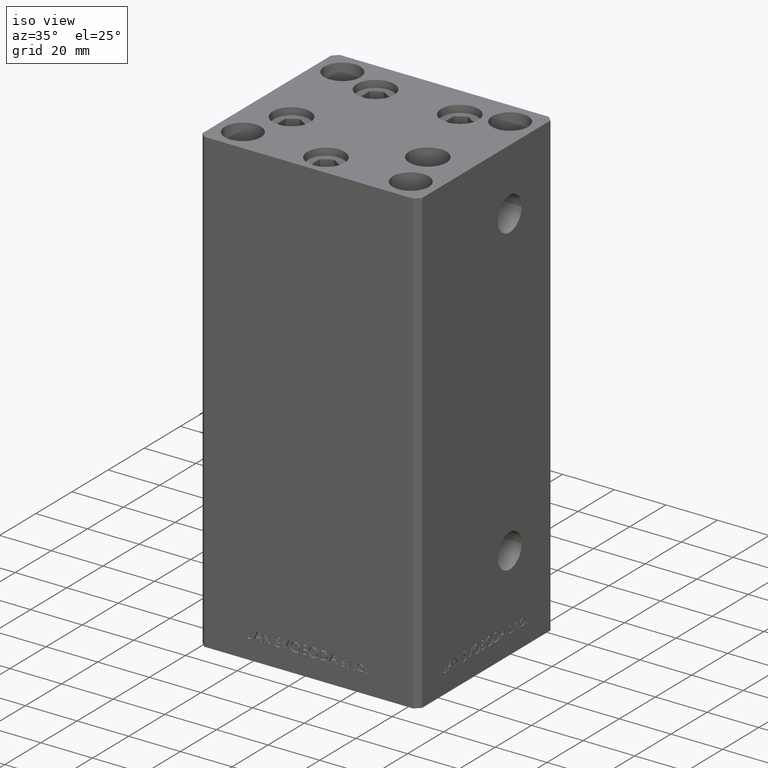
[diagram: clean part render]
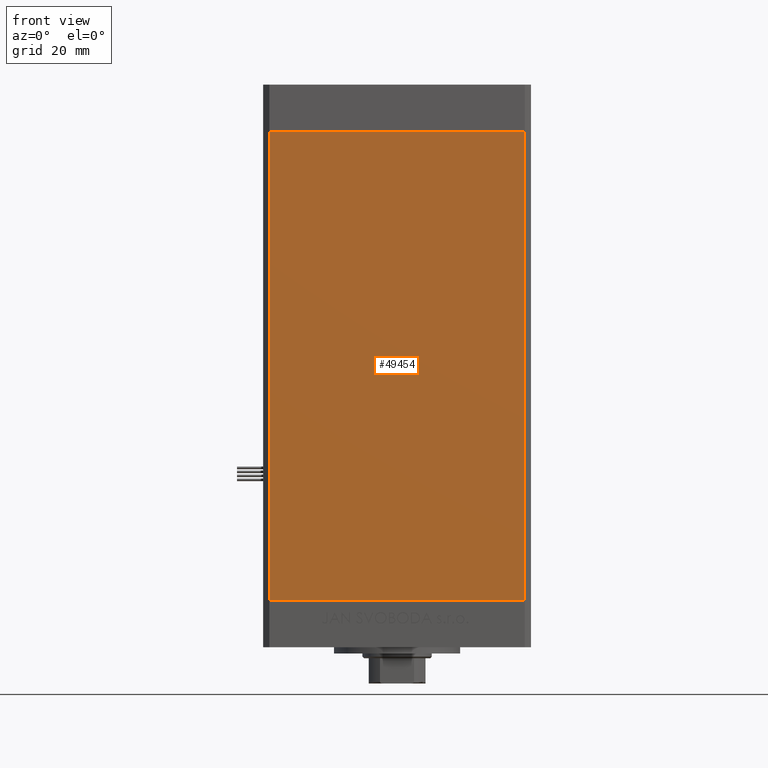
[diagram: tour spotlight — one face highlighted and labeled with its STEP entity id]
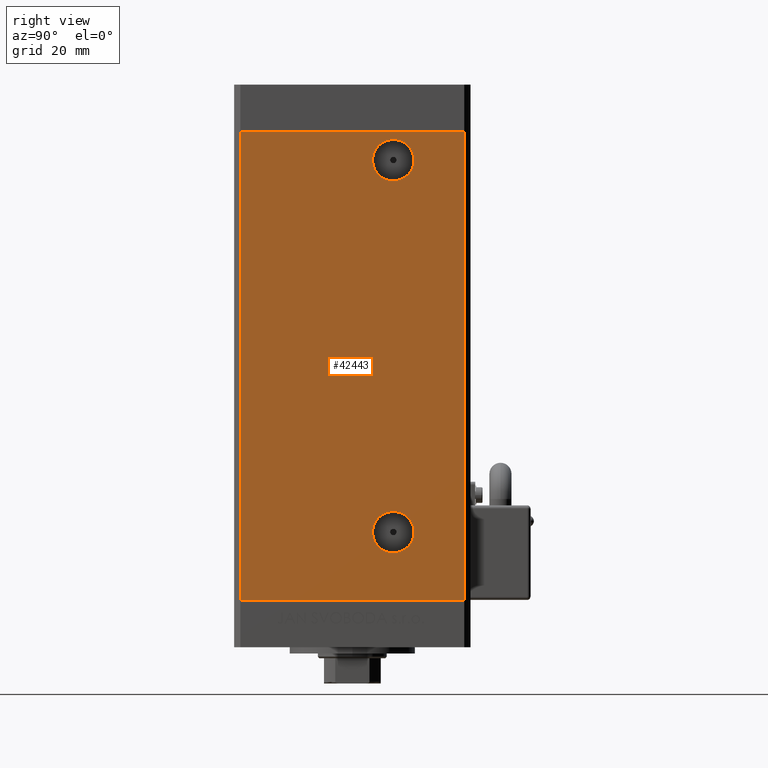
[diagram: tour spotlight — one face highlighted and labeled with its STEP entity id]
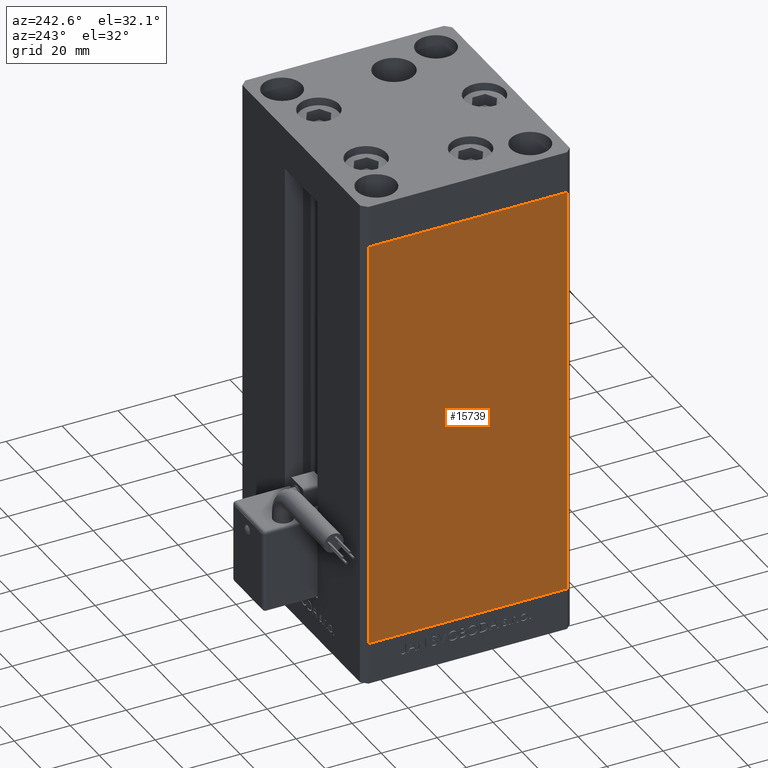
[diagram: tour spotlight — one face highlighted and labeled with its STEP entity id]
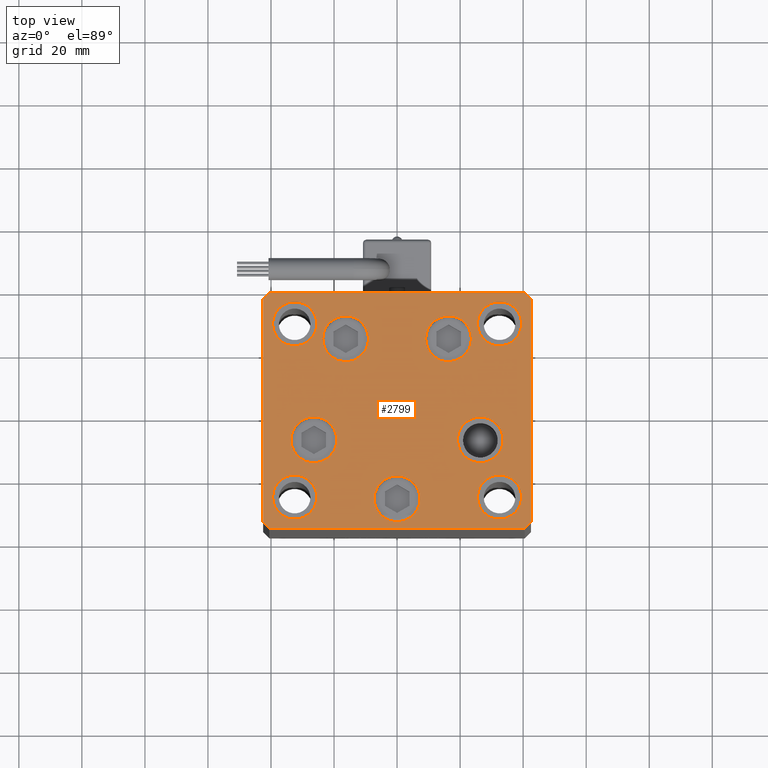
[diagram: tour spotlight — one face highlighted and labeled with its STEP entity id]
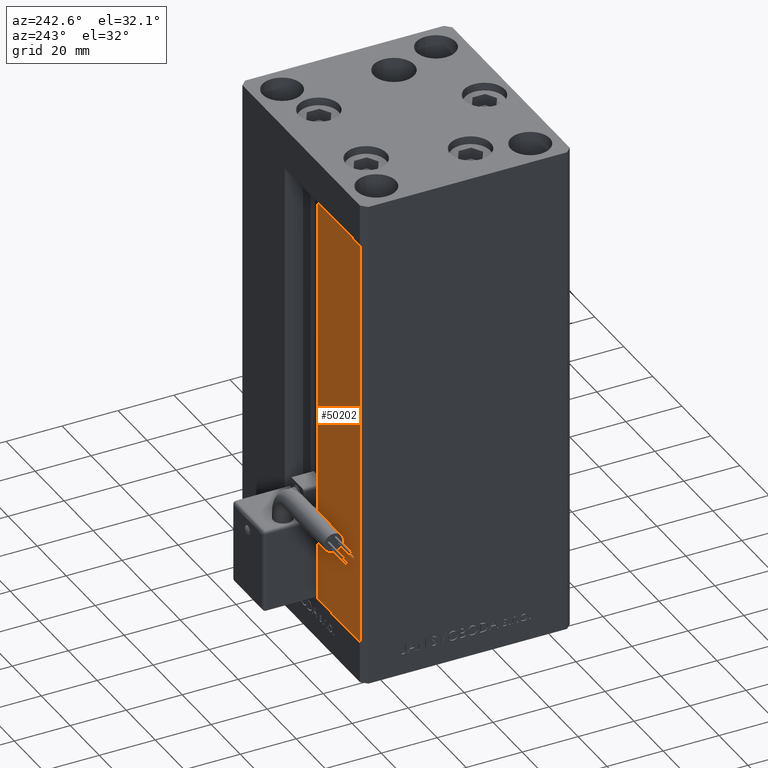
[diagram: tour spotlight — one face highlighted and labeled with its STEP entity id]
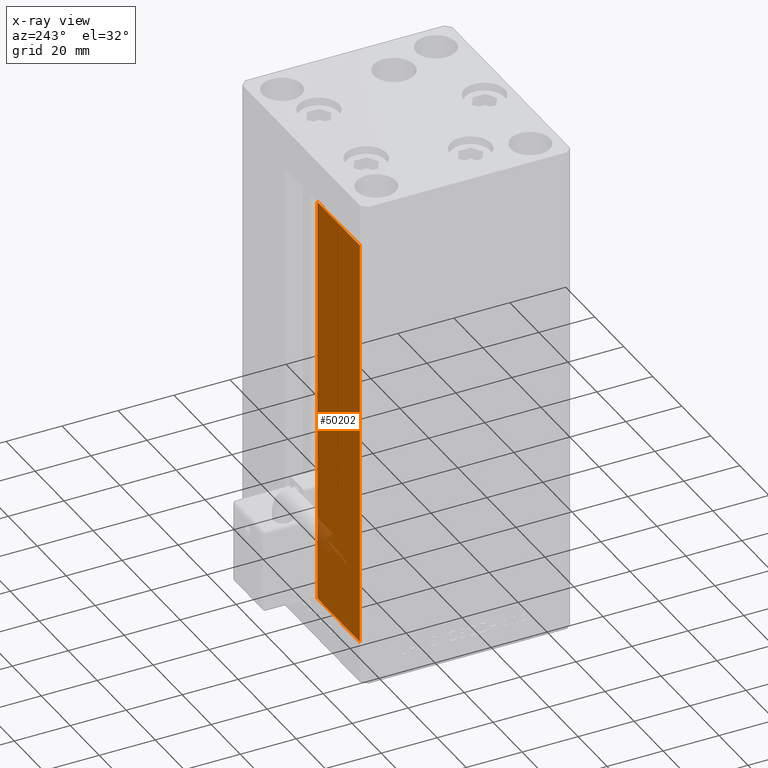
[diagram: x-ray of the same camera — body ghosted, this tour face saturated]
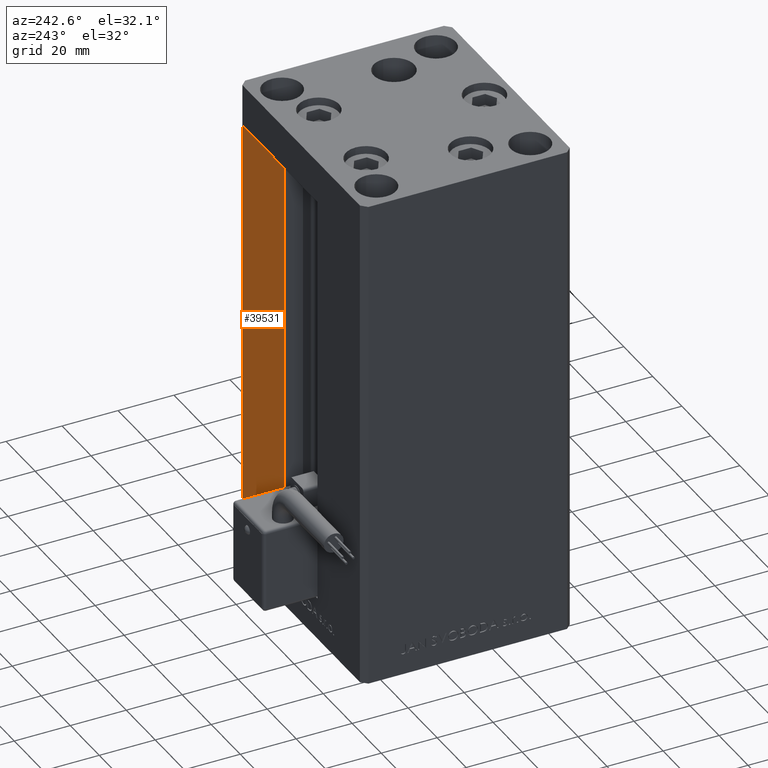
[diagram: tour spotlight — one face highlighted and labeled with its STEP entity id]
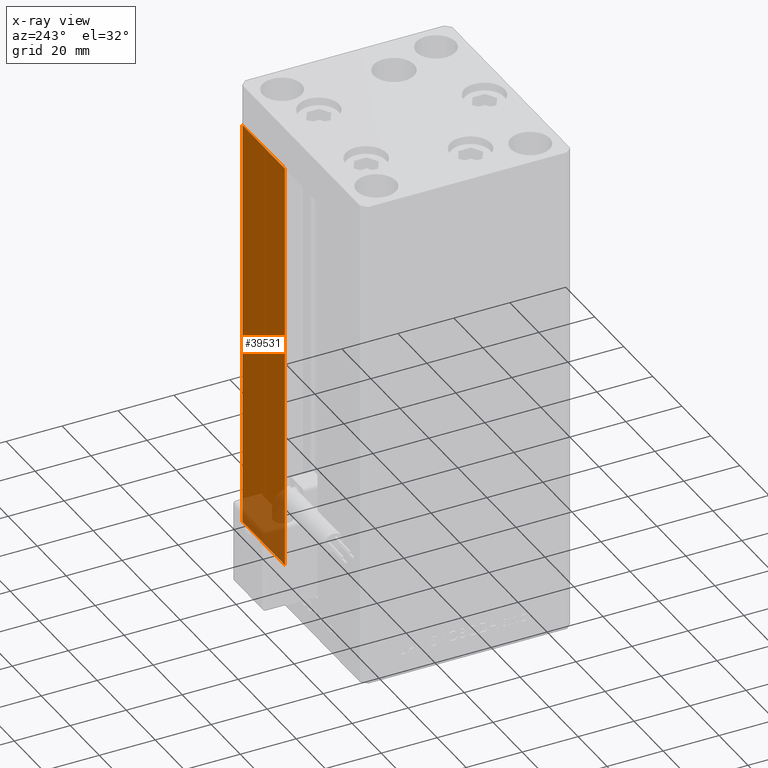
[diagram: x-ray of the same camera — body ghosted, this tour face saturated]
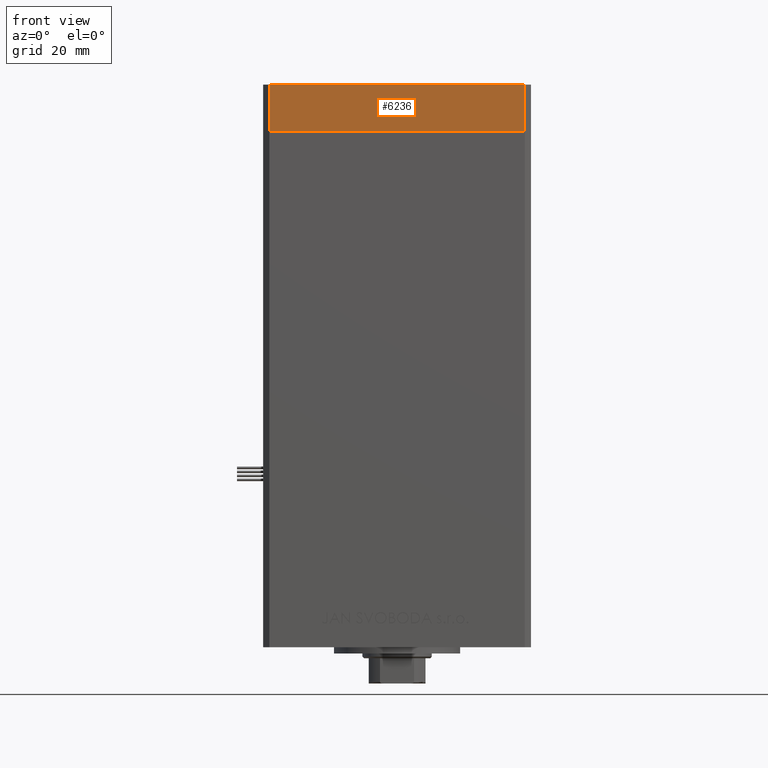
[diagram: tour spotlight — one face highlighted and labeled with its STEP entity id]
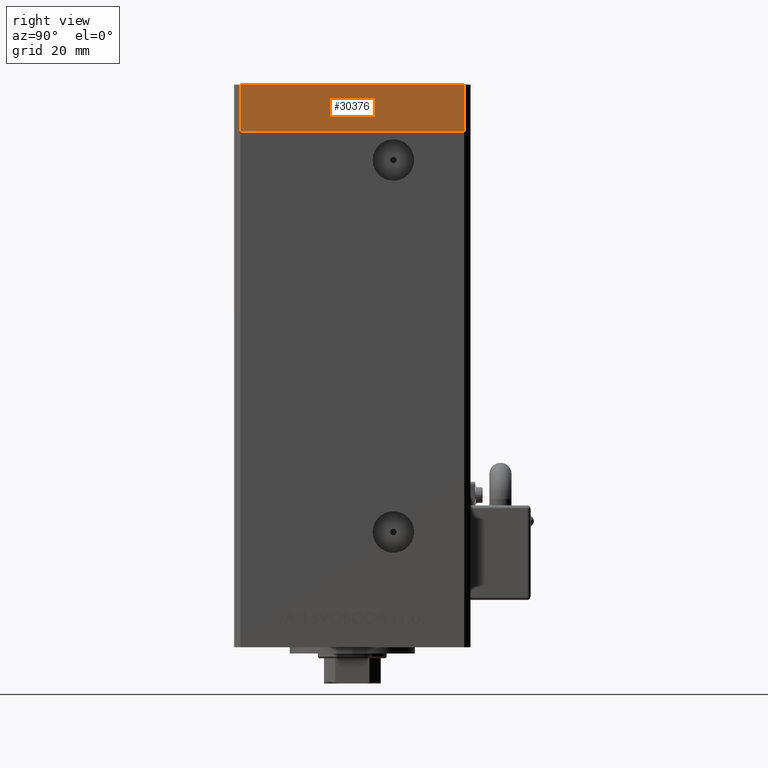
[diagram: tour spotlight — one face highlighted and labeled with its STEP entity id]
A machine part: a face-by-face anatomy tour. The part has 1273 B-rep faces; the first image is the clean iso view, then the 8 largest visible faces are spotlighted one at a time (largest first), each with its STEP entity span.

Face 1 — front view, entity #49454. In plain terms, the highlighted planar face has unit normal (0, 1, 0).
Definition (entity closure, byte-faithful):
#3946 = EDGE_CURVE ( 'NONE', #5306, #8690, #28985, .T. ) ;
#4261 = ORIENTED_EDGE ( 'NONE', *, *, #15121, .T. ) ;
#5306 = VERTEX_POINT ( 'NONE', #15115 ) ;
#5652 = VECTOR ( 'NONE', #24502, 1000.000000000000000 ) ;
#5761 = ORIENTED_EDGE ( 'NONE', *, *, #23369, .F. ) ;
#6499 = VECTOR ( 'NONE', #19738, 1000.000000000000000 ) ;
#8690 = VERTEX_POINT ( 'NONE', #23055 ) ;
#13146 = CARTESIAN_POINT ( 'NONE',  ( -40.49999999999998579, -37.50000000000000711, 148.5000000000000000 ) ) ;
#14660 = PLANE ( 'NONE',  #28077 ) ;
#14953 = LINE ( 'NONE', #19169, #28241 ) ;
#15115 = CARTESIAN_POINT ( 'NONE',  ( -40.49999999999998579, -37.50000000000000711, 0.000000000000000000 ) ) ;
#15121 = EDGE_CURVE ( 'NONE', #25217, #5306, #14953, .T. ) ;
#18355 = DIRECTION ( 'NONE',  ( 0.000000000000000000, -0.000000000000000000, 1.000000000000000000 ) ) ;
#19169 = CARTESIAN_POINT ( 'NONE',  ( -40.49999999999998579, -37.50000000000000711, 148.5000000000000000 ) ) ;
#19738 = DIRECTION ( 'NONE',  ( 1.000000000000000000, 0.000000000000000000, 0.000000000000000000 ) ) ;
#21148 = CARTESIAN_POINT ( 'NONE',  ( 40.49999999999998579, -37.50000000000000711, 148.5000000000000000 ) ) ;
#21863 = EDGE_LOOP ( 'NONE', ( #32644, #33157, #5761, #4261 ) ) ;
#23055 = CARTESIAN_POINT ( 'NONE',  ( 40.49999999999998579, -37.50000000000000711, 0.000000000000000000 ) ) ;
#23090 = CARTESIAN_POINT ( 'NONE',  ( -40.49999999999998579, -37.50000000000000711, 148.5000000000000000 ) ) ;
#23369 = EDGE_CURVE ( 'NONE', #25217, #49733, #39028, .T. ) ;
#24263 = CARTESIAN_POINT ( 'NONE',  ( 40.49999999999998579, -37.50000000000000711, 148.5000000000000000 ) ) ;
#24502 = DIRECTION ( 'NONE',  ( 1.000000000000000000, 0.000000000000000000, 0.000000000000000000 ) ) ;
#25217 = VERTEX_POINT ( 'NONE', #13146 ) ;
#28077 = AXIS2_PLACEMENT_3D ( 'NONE', #23090, #30753, #18355 ) ;
#28241 = VECTOR ( 'NONE', #51389, 1000.000000000000000 ) ;
#28985 = LINE ( 'NONE', #49577, #5652 ) ;
#30753 = DIRECTION ( 'NONE',  ( 0.000000000000000000, 1.000000000000000000, 0.000000000000000000 ) ) ;
#32644 = ORIENTED_EDGE ( 'NONE', *, *, #3946, .T. ) ;
#33157 = ORIENTED_EDGE ( 'NONE', *, *, #37478, .F. ) ;
#33800 = LINE ( 'NONE', #21148, #44866 ) ;
#37478 = EDGE_CURVE ( 'NONE', #49733, #8690, #33800, .T. ) ;
#37502 = DIRECTION ( 'NONE',  ( -0.000000000000000000, -0.000000000000000000, -1.000000000000000000 ) ) ;
#39028 = LINE ( 'NONE', #43771, #6499 ) ;
#43166 = FACE_OUTER_BOUND ( 'NONE', #21863, .T. ) ;
#43771 = CARTESIAN_POINT ( 'NONE',  ( -40.49999999999998579, -37.50000000000000711, 148.5000000000000000 ) ) ;
#44866 = VECTOR ( 'NONE', #37502, 1000.000000000000000 ) ;
#49454 = ADVANCED_FACE ( 'NONE', ( #43166 ), #14660, .F. ) ;
#49577 = CARTESIAN_POINT ( 'NONE',  ( -40.49999999999998579, -37.50000000000000711, 0.000000000000000000 ) ) ;
#49733 = VERTEX_POINT ( 'NONE', #24263 ) ;
#51389 = DIRECTION ( 'NONE',  ( -0.000000000000000000, -0.000000000000000000, -1.000000000000000000 ) ) ;

Face 2 — right view, entity #42443. In plain terms, the highlighted planar face has unit normal (1, -0, 0).
Definition (entity closure, byte-faithful):
#135 = AXIS2_PLACEMENT_3D ( 'NONE', #28023, #44139, #24059 ) ;
#571 = VERTEX_POINT ( 'NONE', #21037 ) ;
#2769 = EDGE_LOOP ( 'NONE', ( #35244, #6471, #34129, #50919 ) ) ;
#3742 = FACE_BOUND ( 'NONE', #49449, .T. ) ;
#4387 = CARTESIAN_POINT ( 'NONE',  ( 42.49999999999999289, 13.00000000000000000, 139.4999999999999716 ) ) ;
#5687 = VERTEX_POINT ( 'NONE', #23431 ) ;
#6471 = ORIENTED_EDGE ( 'NONE', *, *, #51521, .F. ) ;
#8584 = DIRECTION ( 'NONE',  ( 1.000000000000000000, -2.275047181608927644E-16, 0.000000000000000000 ) ) ;
#9321 = VERTEX_POINT ( 'NONE', #13990 ) ;
#9843 = DIRECTION ( 'NONE',  ( -0.000000000000000000, -0.000000000000000000, -1.000000000000000000 ) ) ;
#10186 = VECTOR ( 'NONE', #21258, 1000.000000000000000 ) ;
#10686 = CARTESIAN_POINT ( 'NONE',  ( 42.49999999999999289, 6.419999999999993712, 21.49999999999997868 ) ) ;
#11676 = AXIS2_PLACEMENT_3D ( 'NONE', #23441, #8584, #24921 ) ;
#11935 = PLANE ( 'NONE',  #135 ) ;
#13985 = CARTESIAN_POINT ( 'NONE',  ( 42.50000000000000711, 35.50000000000001421, 148.5000000000000000 ) ) ;
#13990 = CARTESIAN_POINT ( 'NONE',  ( 42.50000000000000711, 35.50000000000001421, 148.5000000000000000 ) ) ;
#14200 = CIRCLE ( 'NONE', #11676, 6.580000000000008065 ) ;
#15408 = CARTESIAN_POINT ( 'NONE',  ( 42.49999999999999289, 6.419999999999983942, 139.4999999999999716 ) ) ;
#15894 = FACE_BOUND ( 'NONE', #31326, .T. ) ;
#16292 = VERTEX_POINT ( 'NONE', #10686 ) ;
#17049 = LINE ( 'NONE', #50036, #10186 ) ;
#18702 = AXIS2_PLACEMENT_3D ( 'NONE', #33449, #49570, #29492 ) ;
#18745 = VECTOR ( 'NONE', #23688, 1000.000000000000000 ) ;
#19841 = FACE_OUTER_BOUND ( 'NONE', #2769, .T. ) ;
#21037 = CARTESIAN_POINT ( 'NONE',  ( 42.49999999999999289, 19.58000000000000540, 21.49999999999997868 ) ) ;
#21090 = VERTEX_POINT ( 'NONE', #23911 ) ;
#21258 = DIRECTION ( 'NONE',  ( -2.931927001650941360E-16, -1.000000000000000000, 0.000000000000000000 ) ) ;
#21974 = AXIS2_PLACEMENT_3D ( 'NONE', #4387, #43732, #32349 ) ;
#22154 = CARTESIAN_POINT ( 'NONE',  ( 42.50000000000000711, 35.50000000000001421, 0.000000000000000000 ) ) ;
#22510 = CIRCLE ( 'NONE', #41877, 6.580000000000008065 ) ;
#23431 = CARTESIAN_POINT ( 'NONE',  ( 42.49999999999999289, 19.58000000000001251, 139.4999999999999716 ) ) ;
#23441 = CARTESIAN_POINT ( 'NONE',  ( 42.49999999999999289, 13.00000000000000000, 21.49999999999997868 ) ) ;
#23554 = VERTEX_POINT ( 'NONE', #30463 ) ;
#23688 = DIRECTION ( 'NONE',  ( -2.931927001650941360E-16, -1.000000000000000000, 0.000000000000000000 ) ) ;
#23911 = CARTESIAN_POINT ( 'NONE',  ( 42.49999999999998579, -35.50000000000000711, 0.000000000000000000 ) ) ;
#23969 = EDGE_CURVE ( 'NONE', #571, #16292, #22510, .T. ) ;
#24059 = DIRECTION ( 'NONE',  ( 2.931927001650941360E-16, 1.000000000000000000, 0.000000000000000000 ) ) ;
#24500 = CIRCLE ( 'NONE', #21974, 6.580000000000014282 ) ;
#24921 = DIRECTION ( 'NONE',  ( 0.000000000000000000, 1.000000000000000000, 0.000000000000000000 ) ) ;
#26698 = EDGE_CURVE ( 'NONE', #16292, #571, #14200, .T. ) ;
#27644 = CARTESIAN_POINT ( 'NONE',  ( 42.50000000000000711, 35.50000000000001421, 148.5000000000000000 ) ) ;
#28023 = CARTESIAN_POINT ( 'NONE',  ( 42.50000000000000711, 35.50000000000001421, 148.5000000000000000 ) ) ;
#29492 = DIRECTION ( 'NONE',  ( 0.000000000000000000, 1.000000000000000000, 0.000000000000000000 ) ) ;
#30106 = VERTEX_POINT ( 'NONE', #15408 ) ;
#30463 = CARTESIAN_POINT ( 'NONE',  ( 42.49999999999998579, -35.50000000000000711, 148.5000000000000000 ) ) ;
#30695 = CARTESIAN_POINT ( 'NONE',  ( 42.49999999999998579, -35.50000000000000711, 148.5000000000000000 ) ) ;
#31326 = EDGE_LOOP ( 'NONE', ( #37306, #44725 ) ) ;
#32349 = DIRECTION ( 'NONE',  ( 0.000000000000000000, 1.000000000000000000, 0.000000000000000000 ) ) ;
#33379 = EDGE_CURVE ( 'NONE', #23554, #21090, #38355, .T. ) ;
#33449 = CARTESIAN_POINT ( 'NONE',  ( 42.49999999999999289, 13.00000000000000000, 139.4999999999999716 ) ) ;
#34129 = ORIENTED_EDGE ( 'NONE', *, *, #38696, .T. ) ;
#35244 = ORIENTED_EDGE ( 'NONE', *, *, #44067, .F. ) ;
#36548 = VECTOR ( 'NONE', #41955, 1000.000000000000000 ) ;
#37065 = EDGE_CURVE ( 'NONE', #5687, #30106, #42294, .T. ) ;
#37306 = ORIENTED_EDGE ( 'NONE', *, *, #23969, .F. ) ;
#38355 = LINE ( 'NONE', #30695, #43005 ) ;
#38696 = EDGE_CURVE ( 'NONE', #9321, #23554, #47977, .T. ) ;
#41877 = AXIS2_PLACEMENT_3D ( 'NONE', #48062, #43844, #51774 ) ;
#41955 = DIRECTION ( 'NONE',  ( -0.000000000000000000, -0.000000000000000000, -1.000000000000000000 ) ) ;
#42294 = CIRCLE ( 'NONE', #18702, 6.580000000000014282 ) ;
#42443 = ADVANCED_FACE ( 'NONE', ( #15894, #3742, #19841 ), #11935, .T. ) ;
#43005 = VECTOR ( 'NONE', #9843, 1000.000000000000000 ) ;
#43732 = DIRECTION ( 'NONE',  ( 1.000000000000000000, -2.275047181608927644E-16, 0.000000000000000000 ) ) ;
#43844 = DIRECTION ( 'NONE',  ( 1.000000000000000000, -2.275047181608927644E-16, 0.000000000000000000 ) ) ;
#43870 = EDGE_CURVE ( 'NONE', #30106, #5687, #24500, .T. ) ;
#44067 = EDGE_CURVE ( 'NONE', #51630, #21090, #17049, .T. ) ;
#44139 = DIRECTION ( 'NONE',  ( 1.000000000000000000, -2.931927001650941360E-16, 0.000000000000000000 ) ) ;
#44725 = ORIENTED_EDGE ( 'NONE', *, *, #26698, .F. ) ;
#45240 = ORIENTED_EDGE ( 'NONE', *, *, #37065, .F. ) ;
#47977 = LINE ( 'NONE', #27644, #18745 ) ;
#48062 = CARTESIAN_POINT ( 'NONE',  ( 42.49999999999999289, 13.00000000000000000, 21.49999999999997868 ) ) ;
#49020 = ORIENTED_EDGE ( 'NONE', *, *, #43870, .F. ) ;
#49367 = LINE ( 'NONE', #13985, #36548 ) ;
#49449 = EDGE_LOOP ( 'NONE', ( #45240, #49020 ) ) ;
#49570 = DIRECTION ( 'NONE',  ( 1.000000000000000000, -2.275047181608927644E-16, 0.000000000000000000 ) ) ;
#50036 = CARTESIAN_POINT ( 'NONE',  ( 42.50000000000000711, 35.50000000000001421, 0.000000000000000000 ) ) ;
#50919 = ORIENTED_EDGE ( 'NONE', *, *, #33379, .T. ) ;
#51521 = EDGE_CURVE ( 'NONE', #9321, #51630, #49367, .T. ) ;
#51630 = VERTEX_POINT ( 'NONE', #22154 ) ;
#51774 = DIRECTION ( 'NONE',  ( 0.000000000000000000, 1.000000000000000000, 0.000000000000000000 ) ) ;

Face 3 — auxiliary view, entity #15739. In plain terms, the highlighted planar face has unit normal (1, 0, 0).
Definition (entity closure, byte-faithful):
#640 = DIRECTION ( 'NONE',  ( -0.000000000000000000, -0.000000000000000000, -1.000000000000000000 ) ) ;
#858 = EDGE_CURVE ( 'NONE', #18353, #14283, #21472, .T. ) ;
#1574 = CARTESIAN_POINT ( 'NONE',  ( -42.50000000000000711, 35.50000000000001421, 0.000000000000000000 ) ) ;
#1724 = VECTOR ( 'NONE', #43366, 1000.000000000000000 ) ;
#2923 = AXIS2_PLACEMENT_3D ( 'NONE', #30864, #46975, #10815 ) ;
#4141 = ORIENTED_EDGE ( 'NONE', *, *, #858, .T. ) ;
#6066 = DIRECTION ( 'NONE',  ( 2.931927001650941360E-16, -1.000000000000000000, 0.000000000000000000 ) ) ;
#7710 = LINE ( 'NONE', #23807, #45535 ) ;
#9872 = CARTESIAN_POINT ( 'NONE',  ( -42.50000000000000711, 35.50000000000001421, 0.000000000000000000 ) ) ;
#9876 = VECTOR ( 'NONE', #640, 1000.000000000000000 ) ;
#10815 = DIRECTION ( 'NONE',  ( -2.931927001650941360E-16, 1.000000000000000000, 0.000000000000000000 ) ) ;
#12093 = EDGE_CURVE ( 'NONE', #18353, #48295, #16175, .T. ) ;
#13160 = ORIENTED_EDGE ( 'NONE', *, *, #42442, .F. ) ;
#14283 = VERTEX_POINT ( 'NONE', #9872 ) ;
#14734 = EDGE_CURVE ( 'NONE', #14283, #42572, #37738, .T. ) ;
#15739 = ADVANCED_FACE ( 'NONE', ( #40094 ), #50952, .F. ) ;
#16175 = LINE ( 'NONE', #31485, #1724 ) ;
#18353 = VERTEX_POINT ( 'NONE', #40663 ) ;
#18880 = ORIENTED_EDGE ( 'NONE', *, *, #14734, .T. ) ;
#21472 = LINE ( 'NONE', #33350, #9876 ) ;
#22291 = VECTOR ( 'NONE', #6066, 1000.000000000000000 ) ;
#23807 = CARTESIAN_POINT ( 'NONE',  ( -42.49999999999998579, -35.50000000000000711, 148.5000000000000000 ) ) ;
#30864 = CARTESIAN_POINT ( 'NONE',  ( -42.50000000000000711, 35.50000000000001421, 148.5000000000000000 ) ) ;
#31485 = CARTESIAN_POINT ( 'NONE',  ( -42.50000000000000711, 35.50000000000001421, 148.5000000000000000 ) ) ;
#33350 = CARTESIAN_POINT ( 'NONE',  ( -42.50000000000000711, 35.50000000000001421, 148.5000000000000000 ) ) ;
#35143 = CARTESIAN_POINT ( 'NONE',  ( -42.49999999999998579, -35.50000000000000711, 148.5000000000000000 ) ) ;
#37738 = LINE ( 'NONE', #1574, #22291 ) ;
#39910 = DIRECTION ( 'NONE',  ( -0.000000000000000000, -0.000000000000000000, -1.000000000000000000 ) ) ;
#40094 = FACE_OUTER_BOUND ( 'NONE', #42801, .T. ) ;
#40663 = CARTESIAN_POINT ( 'NONE',  ( -42.50000000000000711, 35.50000000000001421, 148.5000000000000000 ) ) ;
#41218 = ORIENTED_EDGE ( 'NONE', *, *, #12093, .F. ) ;
#42442 = EDGE_CURVE ( 'NONE', #48295, #42572, #7710, .T. ) ;
#42572 = VERTEX_POINT ( 'NONE', #50707 ) ;
#42801 = EDGE_LOOP ( 'NONE', ( #18880, #13160, #41218, #4141 ) ) ;
#43366 = DIRECTION ( 'NONE',  ( 2.931927001650941360E-16, -1.000000000000000000, 0.000000000000000000 ) ) ;
#45535 = VECTOR ( 'NONE', #39910, 1000.000000000000000 ) ;
#46975 = DIRECTION ( 'NONE',  ( 1.000000000000000000, 2.931927001650941360E-16, -0.000000000000000000 ) ) ;
#48295 = VERTEX_POINT ( 'NONE', #35143 ) ;
#50707 = CARTESIAN_POINT ( 'NONE',  ( -42.49999999999998579, -35.50000000000000711, 0.000000000000000000 ) ) ;
#50952 = PLANE ( 'NONE',  #2923 ) ;

Face 4 — top view, entity #2799. In plain terms, the highlighted planar face has unit normal (0, 0, 1).
Definition (entity closure, byte-faithful):
#222 = CARTESIAN_POINT ( 'NONE',  ( 32.50000000000000000, 27.49999999999999645, 0.000000000000000000 ) ) ;
#774 = DIRECTION ( 'NONE',  ( 0.000000000000000000, 0.000000000000000000, 1.000000000000000000 ) ) ;
#1249 = EDGE_CURVE ( 'NONE', #33994, #25928, #26413, .T. ) ;
#1439 = CARTESIAN_POINT ( 'NONE',  ( -39.50000000000000000, -27.49999999999999645, 0.000000000000000000 ) ) ;
#1889 = CARTESIAN_POINT ( 'NONE',  ( 40.49999999999991473, 37.50000000000000711, 0.000000000000000000 ) ) ;
#1965 = DIRECTION ( 'NONE',  ( 1.000000000000000000, 0.000000000000000000, 0.000000000000000000 ) ) ;
#2242 = DIRECTION ( 'NONE',  ( 0.000000000000000000, 0.000000000000000000, 1.000000000000000000 ) ) ;
#2290 = ORIENTED_EDGE ( 'NONE', *, *, #17596, .T. ) ;
#2587 = ORIENTED_EDGE ( 'NONE', *, *, #26938, .T. ) ;
#2799 = ADVANCED_FACE ( 'NONE', ( #14822, #30918, #10861, #15348, #44369, #43852, #47808, #52042, #15869, #12165 ), #36686, .T. ) ;
#2808 = EDGE_CURVE ( 'NONE', #42016, #28673, #38482, .T. ) ;
#2902 = CIRCLE ( 'NONE', #41681, 7.249999999999999112 ) ;
#3529 = DIRECTION ( 'NONE',  ( 1.000000000000000000, 0.000000000000000000, 0.000000000000000000 ) ) ;
#3699 = CARTESIAN_POINT ( 'NONE',  ( -32.50000000000000000, 27.50000000000000355, 0.000000000000000000 ) ) ;
#3853 = EDGE_CURVE ( 'NONE', #28461, #30441, #11858, .T. ) ;
#3930 = CARTESIAN_POINT ( 'NONE',  ( 42.49999999999992895, 35.50000000000000000, 0.000000000000000000 ) ) ;
#3980 = DIRECTION ( 'NONE',  ( 1.000000000000000000, 0.000000000000000000, 0.000000000000000000 ) ) ;
#4085 = CARTESIAN_POINT ( 'NONE',  ( 25.50000000000000355, -27.49999999999999645, 0.000000000000000000 ) ) ;
#4373 = DIRECTION ( 'NONE',  ( -1.000000000000000000, -3.426614273534436165E-16, 0.000000000000000000 ) ) ;
#4408 = ORIENTED_EDGE ( 'NONE', *, *, #28252, .T. ) ;
#4923 = CARTESIAN_POINT ( 'NONE',  ( -40.49999999999999289, -37.50000000000002132, 0.000000000000000000 ) ) ;
#5145 = CARTESIAN_POINT ( 'NONE',  ( -7.249999999999997335, -28.00000000000000000, 0.000000000000000000 ) ) ;
#5229 = DIRECTION ( 'NONE',  ( -1.172770800660376741E-15, 1.000000000000000000, 0.000000000000000000 ) ) ;
#5272 = DIRECTION ( 'NONE',  ( 0.000000000000000000, -0.000000000000000000, -1.000000000000000000 ) ) ;
#5567 = ORIENTED_EDGE ( 'NONE', *, *, #49413, .F. ) ;
#6095 = VERTEX_POINT ( 'NONE', #17730 ) ;
#6099 = CARTESIAN_POINT ( 'NONE',  ( 42.50000000000000711, -35.50000000000000000, 0.000000000000000000 ) ) ;
#6128 = EDGE_CURVE ( 'NONE', #50057, #38817, #12736, .T. ) ;
#6306 = DIRECTION ( 'NONE',  ( 0.000000000000000000, -0.000000000000000000, -1.000000000000000000 ) ) ;
#6328 = AXIS2_PLACEMENT_3D ( 'NONE', #47162, #7563, #23395 ) ;
#6732 = DIRECTION ( 'NONE',  ( 1.000000000000000000, 0.000000000000000000, 0.000000000000000000 ) ) ;
#7279 = AXIS2_PLACEMENT_3D ( 'NONE', #7686, #36434, #3980 ) ;
#7327 = VERTEX_POINT ( 'NONE', #42210 ) ;
#7400 = ORIENTED_EDGE ( 'NONE', *, *, #40366, .F. ) ;
#7508 = AXIS2_PLACEMENT_3D ( 'NONE', #39694, #23583, #3529 ) ;
#7563 = DIRECTION ( 'NONE',  ( 0.000000000000000000, -0.000000000000000000, -1.000000000000000000 ) ) ;
#7686 = CARTESIAN_POINT ( 'NONE',  ( 0.000000000000000000, 0.000000000000000000, 0.000000000000000000 ) ) ;
#7816 = AXIS2_PLACEMENT_3D ( 'NONE', #14405, #42895, #34714 ) ;
#7924 = EDGE_CURVE ( 'NONE', #28673, #42016, #14265, .T. ) ;
#8386 = ORIENTED_EDGE ( 'NONE', *, *, #7924, .F. ) ;
#8461 = DIRECTION ( 'NONE',  ( 0.000000000000000000, 0.000000000000000000, 1.000000000000000000 ) ) ;
#8847 = CARTESIAN_POINT ( 'NONE',  ( 40.49999999999991473, 37.50000000000000711, 0.000000000000000000 ) ) ;
#9178 = LINE ( 'NONE', #41640, #43891 ) ;
#9385 = ORIENTED_EDGE ( 'NONE', *, *, #46571, .F. ) ;
#9508 = AXIS2_PLACEMENT_3D ( 'NONE', #43425, #2242, #6732 ) ;
#9983 = ORIENTED_EDGE ( 'NONE', *, *, #38865, .T. ) ;
#10317 = ORIENTED_EDGE ( 'NONE', *, *, #51882, .T. ) ;
#10621 = CIRCLE ( 'NONE', #43477, 7.249999999999999112 ) ;
#10861 = FACE_BOUND ( 'NONE', #44228, .T. ) ;
#11858 = LINE ( 'NONE', #3930, #49488 ) ;
#12165 = FACE_OUTER_BOUND ( 'NONE', #42050, .T. ) ;
#12530 = ORIENTED_EDGE ( 'NONE', *, *, #39492, .F. ) ;
#12539 = AXIS2_PLACEMENT_3D ( 'NONE', #41809, #21483, #30195 ) ;
#12736 = LINE ( 'NONE', #17469, #34370 ) ;
#12843 = CARTESIAN_POINT ( 'NONE',  ( -23.57291334290543006, 22.74999999999999645, 0.000000000000000000 ) ) ;
#13069 = DIRECTION ( 'NONE',  ( 1.000000000000000000, 0.000000000000000000, 0.000000000000000000 ) ) ;
#14238 = DIRECTION ( 'NONE',  ( 1.000000000000000000, 0.000000000000000000, 0.000000000000000000 ) ) ;
#14265 = CIRCLE ( 'NONE', #7508, 6.999999999999999112 ) ;
#14405 = CARTESIAN_POINT ( 'NONE',  ( 32.50000000000000000, 27.49999999999999645, 0.000000000000000000 ) ) ;
#14822 = FACE_BOUND ( 'NONE', #26796, .T. ) ;
#14931 = ORIENTED_EDGE ( 'NONE', *, *, #3853, .T. ) ;
#14991 = DIRECTION ( 'NONE',  ( 0.7071067811865474617, 0.7071067811865474617, 0.000000000000000000 ) ) ;
#14995 = ORIENTED_EDGE ( 'NONE', *, *, #25897, .T. ) ;
#15023 = CIRCLE ( 'NONE', #42830, 7.249999999999999112 ) ;
#15267 = CARTESIAN_POINT ( 'NONE',  ( 16.32291334290542295, 22.75000000000000000, 0.000000000000000000 ) ) ;
#15348 = FACE_BOUND ( 'NONE', #20568, .T. ) ;
#15435 = VERTEX_POINT ( 'NONE', #37225 ) ;
#15835 = ORIENTED_EDGE ( 'NONE', *, *, #2808, .F. ) ;
#15869 = FACE_BOUND ( 'NONE', #38236, .T. ) ;
#15969 = EDGE_CURVE ( 'NONE', #27512, #44983, #29074, .T. ) ;
#16555 = EDGE_LOOP ( 'NONE', ( #12530, #5567 ) ) ;
#16762 = DIRECTION ( 'NONE',  ( 0.000000000000000000, 0.000000000000000000, 1.000000000000000000 ) ) ;
#17358 = AXIS2_PLACEMENT_3D ( 'NONE', #22030, #38137, #1965 ) ;
#17469 = CARTESIAN_POINT ( 'NONE',  ( -42.50000000000000000, -35.50000000000000711, 0.000000000000000000 ) ) ;
#17511 = CIRCLE ( 'NONE', #29298, 6.999999999999999112 ) ;
#17589 = DIRECTION ( 'NONE',  ( 1.000000000000000000, 0.000000000000000000, 0.000000000000000000 ) ) ;
#17596 = EDGE_CURVE ( 'NONE', #46155, #32190, #10621, .T. ) ;
#17659 = VECTOR ( 'NONE', #4373, 1000.000000000000000 ) ;
#17730 = CARTESIAN_POINT ( 'NONE',  ( -25.50000000000000355, -27.49999999999999645, 0.000000000000000000 ) ) ;
#19728 = CARTESIAN_POINT ( 'NONE',  ( -42.50000000000000000, -35.50000000000000711, 0.000000000000000000 ) ) ;
#19761 = DIRECTION ( 'NONE',  ( 0.000000000000000000, 0.000000000000000000, 1.000000000000000000 ) ) ;
#19903 = EDGE_LOOP ( 'NONE', ( #2290, #9983 ) ) ;
#20319 = DIRECTION ( 'NONE',  ( 1.000000000000000000, 0.000000000000000000, 0.000000000000000000 ) ) ;
#20438 = VERTEX_POINT ( 'NONE', #33626 ) ;
#20568 = EDGE_LOOP ( 'NONE', ( #37448, #40639 ) ) ;
#20714 = CARTESIAN_POINT ( 'NONE',  ( -32.50000000000000000, -27.49999999999999645, 0.000000000000000000 ) ) ;
#20902 = DIRECTION ( 'NONE',  ( 0.7071067811865463515, -0.7071067811865487940, 0.000000000000000000 ) ) ;
#20965 = CIRCLE ( 'NONE', #12539, 7.249999999999999112 ) ;
#21105 = CARTESIAN_POINT ( 'NONE',  ( 3.429011037612589276E-15, -28.00000000000000000, 0.000000000000000000 ) ) ;
#21246 = LINE ( 'NONE', #8847, #17659 ) ;
#21328 = EDGE_CURVE ( 'NONE', #20438, #24663, #32537, .T. ) ;
#21483 = DIRECTION ( 'NONE',  ( 0.000000000000000000, -0.000000000000000000, -1.000000000000000000 ) ) ;
#21945 = AXIS2_PLACEMENT_3D ( 'NONE', #222, #19761, #28450 ) ;
#22030 = CARTESIAN_POINT ( 'NONE',  ( 3.429011037612589276E-15, -28.00000000000000000, 0.000000000000000000 ) ) ;
#23395 = DIRECTION ( 'NONE',  ( 1.000000000000000000, 0.000000000000000000, 0.000000000000000000 ) ) ;
#23534 = CARTESIAN_POINT ( 'NONE',  ( 9.072913342905424727, 22.75000000000000000, 0.000000000000000000 ) ) ;
#23583 = DIRECTION ( 'NONE',  ( 0.000000000000000000, 0.000000000000000000, 1.000000000000000000 ) ) ;
#24036 = DIRECTION ( 'NONE',  ( 1.000000000000000000, 0.000000000000000000, 0.000000000000000000 ) ) ;
#24123 = EDGE_CURVE ( 'NONE', #24663, #20438, #52083, .T. ) ;
#24663 = VERTEX_POINT ( 'NONE', #5145 ) ;
#24779 = EDGE_CURVE ( 'NONE', #6095, #39865, #17511, .T. ) ;
#25328 = EDGE_CURVE ( 'NONE', #42449, #44282, #15023, .T. ) ;
#25443 = CARTESIAN_POINT ( 'NONE',  ( -42.50000000000000711, 35.49999999999997158, 0.000000000000000000 ) ) ;
#25776 = DIRECTION ( 'NONE',  ( 0.000000000000000000, -0.000000000000000000, -1.000000000000000000 ) ) ;
#25897 = EDGE_CURVE ( 'NONE', #38817, #15435, #38114, .T. ) ;
#25928 = VERTEX_POINT ( 'NONE', #25443 ) ;
#25964 = EDGE_LOOP ( 'NONE', ( #46791, #46078 ) ) ;
#26413 = LINE ( 'NONE', #30119, #35083 ) ;
#26495 = CARTESIAN_POINT ( 'NONE',  ( -16.32291334290543006, 22.74999999999999645, 0.000000000000000000 ) ) ;
#26796 = EDGE_LOOP ( 'NONE', ( #10317, #30059 ) ) ;
#26938 = EDGE_CURVE ( 'NONE', #44282, #42449, #20965, .T. ) ;
#27102 = DIRECTION ( 'NONE',  ( 9.773090005503140331E-17, -1.000000000000000000, 0.000000000000000000 ) ) ;
#27512 = VERTEX_POINT ( 'NONE', #44108 ) ;
#27642 = CARTESIAN_POINT ( 'NONE',  ( 40.50000000000000000, -37.50000000000000711, 0.000000000000000000 ) ) ;
#28230 = DIRECTION ( 'NONE',  ( 1.000000000000000000, 0.000000000000000000, 0.000000000000000000 ) ) ;
#28252 = EDGE_CURVE ( 'NONE', #30441, #33994, #21246, .T. ) ;
#28450 = DIRECTION ( 'NONE',  ( 1.000000000000000000, 0.000000000000000000, 0.000000000000000000 ) ) ;
#28461 = VERTEX_POINT ( 'NONE', #34528 ) ;
#28673 = VERTEX_POINT ( 'NONE', #4085 ) ;
#28939 = EDGE_LOOP ( 'NONE', ( #35575, #9385 ) ) ;
#28976 = EDGE_CURVE ( 'NONE', #29448, #47123, #32827, .T. ) ;
#29005 = DIRECTION ( 'NONE',  ( 0.000000000000000000, -0.000000000000000000, -1.000000000000000000 ) ) ;
#29074 = CIRCLE ( 'NONE', #6328, 7.249999999999999112 ) ;
#29298 = AXIS2_PLACEMENT_3D ( 'NONE', #20714, #16762, #13069 ) ;
#29448 = VERTEX_POINT ( 'NONE', #44351 ) ;
#29636 = AXIS2_PLACEMENT_3D ( 'NONE', #41713, #41978, #38019 ) ;
#29730 = CIRCLE ( 'NONE', #46592, 7.249999999999999112 ) ;
#30059 = ORIENTED_EDGE ( 'NONE', *, *, #28976, .T. ) ;
#30119 = CARTESIAN_POINT ( 'NONE',  ( -40.50000000000000711, 37.49999999999997868, 0.000000000000000000 ) ) ;
#30188 = DIRECTION ( 'NONE',  ( 1.000000000000000000, 1.713307136767217096E-16, 0.000000000000000000 ) ) ;
#30195 = DIRECTION ( 'NONE',  ( 1.000000000000000000, 0.000000000000000000, 0.000000000000000000 ) ) ;
#30243 = ORIENTED_EDGE ( 'NONE', *, *, #43708, .T. ) ;
#30441 = VERTEX_POINT ( 'NONE', #1889 ) ;
#30582 = CIRCLE ( 'NONE', #7816, 6.999999999999999112 ) ;
#30918 = FACE_BOUND ( 'NONE', #19903, .T. ) ;
#31127 = DIRECTION ( 'NONE',  ( -0.7071067811865474617, 0.7071067811865474617, 0.000000000000000000 ) ) ;
#31864 = CARTESIAN_POINT ( 'NONE',  ( 39.50000000000000000, 27.49999999999999645, 0.000000000000000000 ) ) ;
#32052 = CARTESIAN_POINT ( 'NONE',  ( -40.50000000000000711, 37.49999999999997868, 0.000000000000000000 ) ) ;
#32190 = VERTEX_POINT ( 'NONE', #51543 ) ;
#32537 = CIRCLE ( 'NONE', #17358, 7.250000000000000000 ) ;
#32827 = CIRCLE ( 'NONE', #44677, 7.249999999999999112 ) ;
#33443 = DIRECTION ( 'NONE',  ( 1.000000000000000000, 0.000000000000000000, 0.000000000000000000 ) ) ;
#33626 = CARTESIAN_POINT ( 'NONE',  ( 7.250000000000003553, -28.00000000000000000, 0.000000000000000000 ) ) ;
#33938 = CARTESIAN_POINT ( 'NONE',  ( 16.32291334290542295, 22.75000000000000000, 0.000000000000000000 ) ) ;
#33986 = VERTEX_POINT ( 'NONE', #40508 ) ;
#33994 = VERTEX_POINT ( 'NONE', #32052 ) ;
#34125 = EDGE_LOOP ( 'NONE', ( #15835, #8386 ) ) ;
#34370 = VECTOR ( 'NONE', #20902, 1000.000000000000000 ) ;
#34420 = DIRECTION ( 'NONE',  ( 1.000000000000000000, 0.000000000000000000, 0.000000000000000000 ) ) ;
#34528 = CARTESIAN_POINT ( 'NONE',  ( 42.49999999999992895, 35.50000000000000000, 0.000000000000000000 ) ) ;
#34714 = DIRECTION ( 'NONE',  ( 1.000000000000000000, 0.000000000000000000, 0.000000000000000000 ) ) ;
#35083 = VECTOR ( 'NONE', #39084, 1000.000000000000000 ) ;
#35575 = ORIENTED_EDGE ( 'NONE', *, *, #24779, .F. ) ;
#36434 = DIRECTION ( 'NONE',  ( -0.000000000000000000, 0.000000000000000000, 1.000000000000000000 ) ) ;
#36686 = PLANE ( 'NONE',  #7279 ) ;
#36970 = ORIENTED_EDGE ( 'NONE', *, *, #1249, .T. ) ;
#37119 = DIRECTION ( 'NONE',  ( 0.000000000000000000, -0.000000000000000000, -1.000000000000000000 ) ) ;
#37184 = CARTESIAN_POINT ( 'NONE',  ( -26.39865316429776954, -9.333333333333337478, 0.000000000000000000 ) ) ;
#37225 = CARTESIAN_POINT ( 'NONE',  ( 40.50000000000000000, -37.50000000000000711, 0.000000000000000000 ) ) ;
#37406 = CARTESIAN_POINT ( 'NONE',  ( 26.39865316429776954, -9.333333333333330373, 0.000000000000000000 ) ) ;
#37448 = ORIENTED_EDGE ( 'NONE', *, *, #24123, .T. ) ;
#37830 = CARTESIAN_POINT ( 'NONE',  ( 25.50000000000000355, 27.49999999999999645, 0.000000000000000000 ) ) ;
#38018 = VERTEX_POINT ( 'NONE', #37830 ) ;
#38019 = DIRECTION ( 'NONE',  ( 1.000000000000000000, 0.000000000000000000, 0.000000000000000000 ) ) ;
#38076 = VECTOR ( 'NONE', #27102, 1000.000000000000000 ) ;
#38114 = LINE ( 'NONE', #46031, #45360 ) ;
#38137 = DIRECTION ( 'NONE',  ( 0.000000000000000000, -0.000000000000000000, -1.000000000000000000 ) ) ;
#38236 = EDGE_LOOP ( 'NONE', ( #47246, #7400 ) ) ;
#38239 = VERTEX_POINT ( 'NONE', #6099 ) ;
#38482 = CIRCLE ( 'NONE', #43541, 6.999999999999999112 ) ;
#38574 = AXIS2_PLACEMENT_3D ( 'NONE', #21105, #5272, #45915 ) ;
#38817 = VERTEX_POINT ( 'NONE', #4923 ) ;
#38865 = EDGE_CURVE ( 'NONE', #32190, #46155, #29730, .T. ) ;
#38913 = CIRCLE ( 'NONE', #29636, 6.999999999999999112 ) ;
#39017 = LINE ( 'NONE', #27642, #46670 ) ;
#39019 = CIRCLE ( 'NONE', #50825, 6.999999999999999112 ) ;
#39084 = DIRECTION ( 'NONE',  ( -0.7071067811865463515, -0.7071067811865487940, 0.000000000000000000 ) ) ;
#39492 = EDGE_CURVE ( 'NONE', #7327, #33986, #39019, .T. ) ;
#39694 = CARTESIAN_POINT ( 'NONE',  ( 32.50000000000000000, -27.49999999999999645, 0.000000000000000000 ) ) ;
#39865 = VERTEX_POINT ( 'NONE', #1439 ) ;
#40166 = CARTESIAN_POINT ( 'NONE',  ( 19.14865316429777309, -9.333333333333330373, 0.000000000000000000 ) ) ;
#40366 = EDGE_CURVE ( 'NONE', #38018, #50070, #44718, .T. ) ;
#40405 = CARTESIAN_POINT ( 'NONE',  ( 32.50000000000000000, -27.49999999999999645, 0.000000000000000000 ) ) ;
#40500 = CARTESIAN_POINT ( 'NONE',  ( -19.14865316429777309, -9.333333333333335702, 0.000000000000000000 ) ) ;
#40508 = CARTESIAN_POINT ( 'NONE',  ( -39.50000000000000000, 27.50000000000000355, 0.000000000000000000 ) ) ;
#40639 = ORIENTED_EDGE ( 'NONE', *, *, #21328, .T. ) ;
#40713 = AXIS2_PLACEMENT_3D ( 'NONE', #37184, #29005, #20319 ) ;
#41535 = CIRCLE ( 'NONE', #40713, 7.249999999999999112 ) ;
#41640 = CARTESIAN_POINT ( 'NONE',  ( 42.50000000000000711, -35.50000000000000000, 0.000000000000000000 ) ) ;
#41681 = AXIS2_PLACEMENT_3D ( 'NONE', #26495, #50021, #34420 ) ;
#41713 = CARTESIAN_POINT ( 'NONE',  ( -32.50000000000000000, -27.49999999999999645, 0.000000000000000000 ) ) ;
#41794 = ORIENTED_EDGE ( 'NONE', *, *, #6128, .T. ) ;
#41809 = CARTESIAN_POINT ( 'NONE',  ( 26.39865316429776954, -9.333333333333330373, 0.000000000000000000 ) ) ;
#41978 = DIRECTION ( 'NONE',  ( 0.000000000000000000, 0.000000000000000000, 1.000000000000000000 ) ) ;
#42016 = VERTEX_POINT ( 'NONE', #42880 ) ;
#42050 = EDGE_LOOP ( 'NONE', ( #41794, #14995, #42246, #30243, #14931, #4408, #36970, #44223 ) ) ;
#42210 = CARTESIAN_POINT ( 'NONE',  ( -25.50000000000000355, 27.50000000000000355, 0.000000000000000000 ) ) ;
#42246 = ORIENTED_EDGE ( 'NONE', *, *, #50052, .T. ) ;
#42429 = CARTESIAN_POINT ( 'NONE',  ( -42.50000000000000711, 35.49999999999997158, 0.000000000000000000 ) ) ;
#42449 = VERTEX_POINT ( 'NONE', #40166 ) ;
#42830 = AXIS2_PLACEMENT_3D ( 'NONE', #37406, #25776, #33443 ) ;
#42880 = CARTESIAN_POINT ( 'NONE',  ( 39.50000000000000000, -27.49999999999999645, 0.000000000000000000 ) ) ;
#42895 = DIRECTION ( 'NONE',  ( 0.000000000000000000, 0.000000000000000000, 1.000000000000000000 ) ) ;
#43425 = CARTESIAN_POINT ( 'NONE',  ( -32.50000000000000000, 27.50000000000000355, 0.000000000000000000 ) ) ;
#43477 = AXIS2_PLACEMENT_3D ( 'NONE', #15267, #6306, #14238 ) ;
#43541 = AXIS2_PLACEMENT_3D ( 'NONE', #40405, #8461, #24036 ) ;
#43708 = EDGE_CURVE ( 'NONE', #38239, #28461, #9178, .T. ) ;
#43852 = FACE_BOUND ( 'NONE', #34125, .T. ) ;
#43891 = VECTOR ( 'NONE', #5229, 1000.000000000000000 ) ;
#44002 = ORIENTED_EDGE ( 'NONE', *, *, #25328, .T. ) ;
#44108 = CARTESIAN_POINT ( 'NONE',  ( -33.64865316429776954, -9.333333333333337478, 0.000000000000000000 ) ) ;
#44223 = ORIENTED_EDGE ( 'NONE', *, *, #46848, .T. ) ;
#44228 = EDGE_LOOP ( 'NONE', ( #44002, #2587 ) ) ;
#44282 = VERTEX_POINT ( 'NONE', #50174 ) ;
#44351 = CARTESIAN_POINT ( 'NONE',  ( -9.072913342905431833, 22.74999999999999645, 0.000000000000000000 ) ) ;
#44369 = FACE_BOUND ( 'NONE', #25964, .T. ) ;
#44677 = AXIS2_PLACEMENT_3D ( 'NONE', #46559, #46812, #46289 ) ;
#44718 = CIRCLE ( 'NONE', #21945, 6.999999999999999112 ) ;
#44938 = CIRCLE ( 'NONE', #9508, 6.999999999999999112 ) ;
#44983 = VERTEX_POINT ( 'NONE', #40500 ) ;
#45360 = VECTOR ( 'NONE', #30188, 1000.000000000000000 ) ;
#45915 = DIRECTION ( 'NONE',  ( 1.000000000000000000, 0.000000000000000000, 0.000000000000000000 ) ) ;
#46031 = CARTESIAN_POINT ( 'NONE',  ( -40.49999999999999289, -37.50000000000002132, 0.000000000000000000 ) ) ;
#46078 = ORIENTED_EDGE ( 'NONE', *, *, #49662, .T. ) ;
#46155 = VERTEX_POINT ( 'NONE', #23534 ) ;
#46289 = DIRECTION ( 'NONE',  ( 1.000000000000000000, 0.000000000000000000, 0.000000000000000000 ) ) ;
#46398 = LINE ( 'NONE', #42429, #38076 ) ;
#46559 = CARTESIAN_POINT ( 'NONE',  ( -16.32291334290543006, 22.74999999999999645, 0.000000000000000000 ) ) ;
#46571 = EDGE_CURVE ( 'NONE', #39865, #6095, #38913, .T. ) ;
#46592 = AXIS2_PLACEMENT_3D ( 'NONE', #33938, #37119, #17589 ) ;
#46670 = VECTOR ( 'NONE', #14991, 1000.000000000000114 ) ;
#46791 = ORIENTED_EDGE ( 'NONE', *, *, #15969, .T. ) ;
#46812 = DIRECTION ( 'NONE',  ( 0.000000000000000000, -0.000000000000000000, -1.000000000000000000 ) ) ;
#46848 = EDGE_CURVE ( 'NONE', #25928, #50057, #46398, .T. ) ;
#47123 = VERTEX_POINT ( 'NONE', #12843 ) ;
#47162 = CARTESIAN_POINT ( 'NONE',  ( -26.39865316429776954, -9.333333333333337478, 0.000000000000000000 ) ) ;
#47246 = ORIENTED_EDGE ( 'NONE', *, *, #48155, .F. ) ;
#47808 = FACE_BOUND ( 'NONE', #28939, .T. ) ;
#48155 = EDGE_CURVE ( 'NONE', #50070, #38018, #30582, .T. ) ;
#49413 = EDGE_CURVE ( 'NONE', #33986, #7327, #44938, .T. ) ;
#49488 = VECTOR ( 'NONE', #31127, 1000.000000000000114 ) ;
#49662 = EDGE_CURVE ( 'NONE', #44983, #27512, #41535, .T. ) ;
#50021 = DIRECTION ( 'NONE',  ( 0.000000000000000000, -0.000000000000000000, -1.000000000000000000 ) ) ;
#50052 = EDGE_CURVE ( 'NONE', #15435, #38239, #39017, .T. ) ;
#50057 = VERTEX_POINT ( 'NONE', #19728 ) ;
#50070 = VERTEX_POINT ( 'NONE', #31864 ) ;
#50174 = CARTESIAN_POINT ( 'NONE',  ( 33.64865316429776954, -9.333333333333328596, 0.000000000000000000 ) ) ;
#50825 = AXIS2_PLACEMENT_3D ( 'NONE', #3699, #774, #28230 ) ;
#51543 = CARTESIAN_POINT ( 'NONE',  ( 23.57291334290542295, 22.75000000000000000, 0.000000000000000000 ) ) ;
#51882 = EDGE_CURVE ( 'NONE', #47123, #29448, #2902, .T. ) ;
#52042 = FACE_BOUND ( 'NONE', #16555, .T. ) ;
#52083 = CIRCLE ( 'NONE', #38574, 7.250000000000000000 ) ;

Face 5 — auxiliary view, entity #50202. An x-ray twin of the same camera follows (body ghosted, this face saturated) — the face is partly hidden behind the body. In plain terms, the highlighted planar face has unit normal (-0, -1, 0).
Definition (entity closure, byte-faithful):
#2683 = VECTOR ( 'NONE', #20292, 1000.000000000000000 ) ;
#2750 = EDGE_CURVE ( 'NONE', #50628, #13712, #51519, .T. ) ;
#3889 = CARTESIAN_POINT ( 'NONE',  ( -11.25000000000000000, 37.50000000000000000, 148.5000000000000000 ) ) ;
#4116 = DIRECTION ( 'NONE',  ( 1.000000000000000000, 0.000000000000000000, 0.000000000000000000 ) ) ;
#5047 = ORIENTED_EDGE ( 'NONE', *, *, #2750, .F. ) ;
#5360 = AXIS2_PLACEMENT_3D ( 'NONE', #3889, #32125, #19996 ) ;
#6272 = EDGE_CURVE ( 'NONE', #50628, #49404, #19550, .T. ) ;
#13712 = VERTEX_POINT ( 'NONE', #19222 ) ;
#16264 = CARTESIAN_POINT ( 'NONE',  ( -11.25000000000000000, 37.50000000000000000, 148.5000000000000000 ) ) ;
#19222 = CARTESIAN_POINT ( 'NONE',  ( -11.25000000000000000, 37.50000000000000000, 148.5000000000000000 ) ) ;
#19550 = LINE ( 'NONE', #19803, #25996 ) ;
#19803 = CARTESIAN_POINT ( 'NONE',  ( -11.25000000000000000, 37.50000000000000000, 0.000000000000000000 ) ) ;
#19996 = DIRECTION ( 'NONE',  ( 1.000000000000000000, -2.372271420139223331E-16, 0.000000000000000000 ) ) ;
#20292 = DIRECTION ( 'NONE',  ( -0.000000000000000000, -0.000000000000000000, -1.000000000000000000 ) ) ;
#21997 = EDGE_CURVE ( 'NONE', #23610, #13712, #35265, .T. ) ;
#23502 = DIRECTION ( 'NONE',  ( -1.000000000000000000, 2.372271420139223331E-16, 0.000000000000000000 ) ) ;
#23610 = VERTEX_POINT ( 'NONE', #34928 ) ;
#25996 = VECTOR ( 'NONE', #23502, 1000.000000000000000 ) ;
#27312 = CARTESIAN_POINT ( 'NONE',  ( -40.50000000000000000, 37.50000000000000711, 0.000000000000000000 ) ) ;
#28672 = FACE_OUTER_BOUND ( 'NONE', #46802, .T. ) ;
#29916 = CARTESIAN_POINT ( 'NONE',  ( -11.25000000000000000, 37.50000000000000000, 0.000000000000000000 ) ) ;
#32125 = DIRECTION ( 'NONE',  ( -2.372271420139223331E-16, -1.000000000000000000, 0.000000000000000000 ) ) ;
#34928 = CARTESIAN_POINT ( 'NONE',  ( -40.50000000000000000, 37.50000000000000711, 148.5000000000000000 ) ) ;
#35265 = LINE ( 'NONE', #16264, #46937 ) ;
#36884 = EDGE_CURVE ( 'NONE', #23610, #49404, #48537, .T. ) ;
#40352 = CARTESIAN_POINT ( 'NONE',  ( -40.50000000000000000, 37.50000000000000711, 148.5000000000000000 ) ) ;
#43618 = ORIENTED_EDGE ( 'NONE', *, *, #36884, .F. ) ;
#44409 = VECTOR ( 'NONE', #47288, 1000.000000000000000 ) ;
#44799 = ORIENTED_EDGE ( 'NONE', *, *, #6272, .T. ) ;
#44801 = PLANE ( 'NONE',  #5360 ) ;
#44847 = ORIENTED_EDGE ( 'NONE', *, *, #21997, .T. ) ;
#46802 = EDGE_LOOP ( 'NONE', ( #44847, #5047, #44799, #43618 ) ) ;
#46937 = VECTOR ( 'NONE', #4116, 1000.000000000000000 ) ;
#47288 = DIRECTION ( 'NONE',  ( -0.000000000000000000, -0.000000000000000000, 1.000000000000000000 ) ) ;
#48537 = LINE ( 'NONE', #40352, #2683 ) ;
#49404 = VERTEX_POINT ( 'NONE', #27312 ) ;
#50202 = ADVANCED_FACE ( 'NONE', ( #28672 ), #44801, .F. ) ;
#50628 = VERTEX_POINT ( 'NONE', #29916 ) ;
#50746 = CARTESIAN_POINT ( 'NONE',  ( -11.25000000000000000, 37.50000000000000000, 0.000000000000000000 ) ) ;
#51519 = LINE ( 'NONE', #50746, #44409 ) ;

Face 6 — auxiliary view, entity #39531. An x-ray twin of the same camera follows (body ghosted, this face saturated) — the face is partly hidden behind the body. In plain terms, the highlighted planar face has unit normal (-0, -1, 0).
Definition (entity closure, byte-faithful):
#4800 = CARTESIAN_POINT ( 'NONE',  ( 40.50000000000000000, 37.50000000000000711, 0.000000000000000000 ) ) ;
#6233 = LINE ( 'NONE', #14681, #36097 ) ;
#6400 = VECTOR ( 'NONE', #14714, 1000.000000000000000 ) ;
#6701 = DIRECTION ( 'NONE',  ( -0.000000000000000000, -0.000000000000000000, -1.000000000000000000 ) ) ;
#6724 = EDGE_CURVE ( 'NONE', #33995, #23289, #6233, .T. ) ;
#8463 = CARTESIAN_POINT ( 'NONE',  ( 40.50000000000000000, 37.50000000000000711, 148.5000000000000000 ) ) ;
#10595 = LINE ( 'NONE', #26682, #21079 ) ;
#12010 = CARTESIAN_POINT ( 'NONE',  ( 11.25000000000000000, 37.50000000000000000, 0.000000000000000000 ) ) ;
#13447 = DIRECTION ( 'NONE',  ( 1.000000000000000000, -2.372271420139223331E-16, 0.000000000000000000 ) ) ;
#13910 = ORIENTED_EDGE ( 'NONE', *, *, #17019, .T. ) ;
#14681 = CARTESIAN_POINT ( 'NONE',  ( 11.25000000000000000, 37.50000000000000000, 0.000000000000000000 ) ) ;
#14714 = DIRECTION ( 'NONE',  ( -1.000000000000000000, 2.372271420139223331E-16, 0.000000000000000000 ) ) ;
#16619 = FACE_OUTER_BOUND ( 'NONE', #26913, .T. ) ;
#17019 = EDGE_CURVE ( 'NONE', #50964, #33995, #31848, .T. ) ;
#18844 = LINE ( 'NONE', #8463, #25898 ) ;
#19451 = ORIENTED_EDGE ( 'NONE', *, *, #24939, .T. ) ;
#19612 = AXIS2_PLACEMENT_3D ( 'NONE', #37194, #25824, #13447 ) ;
#21079 = VECTOR ( 'NONE', #30910, 1000.000000000000000 ) ;
#21547 = DIRECTION ( 'NONE',  ( -0.000000000000000000, -0.000000000000000000, 1.000000000000000000 ) ) ;
#23289 = VERTEX_POINT ( 'NONE', #33746 ) ;
#24939 = EDGE_CURVE ( 'NONE', #47074, #50964, #18844, .T. ) ;
#25824 = DIRECTION ( 'NONE',  ( -2.372271420139223331E-16, -1.000000000000000000, 0.000000000000000000 ) ) ;
#25898 = VECTOR ( 'NONE', #6701, 1000.000000000000000 ) ;
#26682 = CARTESIAN_POINT ( 'NONE',  ( -11.25000000000000000, 37.50000000000000000, 148.5000000000000000 ) ) ;
#26913 = EDGE_LOOP ( 'NONE', ( #13910, #35364, #27654, #19451 ) ) ;
#27654 = ORIENTED_EDGE ( 'NONE', *, *, #30413, .T. ) ;
#29440 = CARTESIAN_POINT ( 'NONE',  ( 40.50000000000000000, 37.50000000000000711, 148.5000000000000000 ) ) ;
#30413 = EDGE_CURVE ( 'NONE', #23289, #47074, #10595, .T. ) ;
#30910 = DIRECTION ( 'NONE',  ( 1.000000000000000000, 0.000000000000000000, 0.000000000000000000 ) ) ;
#31848 = LINE ( 'NONE', #51933, #6400 ) ;
#32711 = PLANE ( 'NONE',  #19612 ) ;
#33746 = CARTESIAN_POINT ( 'NONE',  ( 11.24999999999999289, 37.50000000000000000, 148.5000000000000000 ) ) ;
#33995 = VERTEX_POINT ( 'NONE', #12010 ) ;
#35364 = ORIENTED_EDGE ( 'NONE', *, *, #6724, .T. ) ;
#36097 = VECTOR ( 'NONE', #21547, 1000.000000000000000 ) ;
#37194 = CARTESIAN_POINT ( 'NONE',  ( -11.25000000000000000, 37.50000000000000000, 148.5000000000000000 ) ) ;
#39531 = ADVANCED_FACE ( 'NONE', ( #16619 ), #32711, .F. ) ;
#47074 = VERTEX_POINT ( 'NONE', #29440 ) ;
#50964 = VERTEX_POINT ( 'NONE', #4800 ) ;
#51933 = CARTESIAN_POINT ( 'NONE',  ( -11.25000000000000000, 37.50000000000000000, 0.000000000000000000 ) ) ;

Face 7 — front view, entity #6236. In plain terms, the highlighted planar face has unit normal (0, -1, 0).
Definition (entity closure, byte-faithful):
#1880 = PLANE ( 'NONE',  #13353 ) ;
#2722 = LINE ( 'NONE', #2978, #44780 ) ;
#2978 = CARTESIAN_POINT ( 'NONE',  ( 40.50000000000000000, -37.50000000000000711, -15.00000000000000000 ) ) ;
#4923 = CARTESIAN_POINT ( 'NONE',  ( -40.49999999999999289, -37.50000000000002132, 0.000000000000000000 ) ) ;
#5078 = DIRECTION ( 'NONE',  ( 0.000000000000000000, 0.000000000000000000, 1.000000000000000000 ) ) ;
#6236 = ADVANCED_FACE ( 'NONE', ( #33555 ), #1880, .T. ) ;
#7802 = ORIENTED_EDGE ( 'NONE', *, *, #51326, .F. ) ;
#11854 = VECTOR ( 'NONE', #31075, 1000.000000000000000 ) ;
#12961 = EDGE_CURVE ( 'NONE', #51174, #15435, #2722, .T. ) ;
#13353 = AXIS2_PLACEMENT_3D ( 'NONE', #39088, #50201, #26153 ) ;
#15435 = VERTEX_POINT ( 'NONE', #37225 ) ;
#17770 = ORIENTED_EDGE ( 'NONE', *, *, #33696, .T. ) ;
#18424 = LINE ( 'NONE', #22376, #11854 ) ;
#19381 = CARTESIAN_POINT ( 'NONE',  ( -40.49999999999999289, -37.50000000000002132, -15.00000000000000000 ) ) ;
#22376 = CARTESIAN_POINT ( 'NONE',  ( -40.49999999999999289, -37.50000000000002132, -15.00000000000000000 ) ) ;
#25897 = EDGE_CURVE ( 'NONE', #38817, #15435, #38114, .T. ) ;
#26153 = DIRECTION ( 'NONE',  ( 1.000000000000000000, 1.713307136767217096E-16, 0.000000000000000000 ) ) ;
#30187 = DIRECTION ( 'NONE',  ( 0.000000000000000000, 0.000000000000000000, 1.000000000000000000 ) ) ;
#30188 = DIRECTION ( 'NONE',  ( 1.000000000000000000, 1.713307136767217096E-16, 0.000000000000000000 ) ) ;
#31075 = DIRECTION ( 'NONE',  ( 1.000000000000000000, 1.713307136767217096E-16, 0.000000000000000000 ) ) ;
#33555 = FACE_OUTER_BOUND ( 'NONE', #33663, .T. ) ;
#33663 = EDGE_LOOP ( 'NONE', ( #42621, #7802, #17770, #34845 ) ) ;
#33696 = EDGE_CURVE ( 'NONE', #42071, #51174, #18424, .T. ) ;
#34845 = ORIENTED_EDGE ( 'NONE', *, *, #12961, .T. ) ;
#37225 = CARTESIAN_POINT ( 'NONE',  ( 40.50000000000000000, -37.50000000000000711, 0.000000000000000000 ) ) ;
#38114 = LINE ( 'NONE', #46031, #45360 ) ;
#38321 = LINE ( 'NONE', #45983, #41641 ) ;
#38817 = VERTEX_POINT ( 'NONE', #4923 ) ;
#39088 = CARTESIAN_POINT ( 'NONE',  ( -40.49999999999999289, -37.50000000000002132, -15.00000000000000000 ) ) ;
#40727 = CARTESIAN_POINT ( 'NONE',  ( 40.50000000000000000, -37.50000000000000711, -15.00000000000000000 ) ) ;
#41641 = VECTOR ( 'NONE', #5078, 1000.000000000000000 ) ;
#42071 = VERTEX_POINT ( 'NONE', #19381 ) ;
#42621 = ORIENTED_EDGE ( 'NONE', *, *, #25897, .F. ) ;
#44780 = VECTOR ( 'NONE', #30187, 1000.000000000000000 ) ;
#45360 = VECTOR ( 'NONE', #30188, 1000.000000000000000 ) ;
#45983 = CARTESIAN_POINT ( 'NONE',  ( -40.49999999999999289, -37.50000000000002132, -15.00000000000000000 ) ) ;
#46031 = CARTESIAN_POINT ( 'NONE',  ( -40.49999999999999289, -37.50000000000002132, 0.000000000000000000 ) ) ;
#50201 = DIRECTION ( 'NONE',  ( 1.713307136767217096E-16, -1.000000000000000000, 0.000000000000000000 ) ) ;
#51174 = VERTEX_POINT ( 'NONE', #40727 ) ;
#51326 = EDGE_CURVE ( 'NONE', #42071, #38817, #38321, .T. ) ;

Face 8 — right view, entity #30376. In plain terms, the highlighted planar face has unit normal (1, 0, 0).
Definition (entity closure, byte-faithful):
#1431 = VECTOR ( 'NONE', #50166, 1000.000000000000000 ) ;
#3750 = EDGE_CURVE ( 'NONE', #44070, #28461, #6853, .T. ) ;
#4818 = DIRECTION ( 'NONE',  ( 0.000000000000000000, 0.000000000000000000, 1.000000000000000000 ) ) ;
#5229 = DIRECTION ( 'NONE',  ( -1.172770800660376741E-15, 1.000000000000000000, 0.000000000000000000 ) ) ;
#5260 = ORIENTED_EDGE ( 'NONE', *, *, #43708, .F. ) ;
#6099 = CARTESIAN_POINT ( 'NONE',  ( 42.50000000000000711, -35.50000000000000000, 0.000000000000000000 ) ) ;
#6853 = LINE ( 'NONE', #22946, #1431 ) ;
#8528 = CARTESIAN_POINT ( 'NONE',  ( 42.50000000000000711, -35.50000000000000000, -15.00000000000000000 ) ) ;
#9178 = LINE ( 'NONE', #41640, #43891 ) ;
#9653 = EDGE_CURVE ( 'NONE', #48936, #44070, #49701, .T. ) ;
#9803 = CARTESIAN_POINT ( 'NONE',  ( 42.50000000000000711, -35.50000000000000000, -15.00000000000000000 ) ) ;
#11282 = VECTOR ( 'NONE', #4818, 1000.000000000000000 ) ;
#12140 = ORIENTED_EDGE ( 'NONE', *, *, #51247, .F. ) ;
#12636 = VECTOR ( 'NONE', #37539, 1000.000000000000000 ) ;
#16039 = AXIS2_PLACEMENT_3D ( 'NONE', #9803, #34608, #30656 ) ;
#16994 = ORIENTED_EDGE ( 'NONE', *, *, #3750, .T. ) ;
#18509 = FACE_OUTER_BOUND ( 'NONE', #28267, .T. ) ;
#22946 = CARTESIAN_POINT ( 'NONE',  ( 42.49999999999992895, 35.50000000000000000, -15.00000000000000000 ) ) ;
#28267 = EDGE_LOOP ( 'NONE', ( #5260, #12140, #33858, #16994 ) ) ;
#28461 = VERTEX_POINT ( 'NONE', #34528 ) ;
#29171 = CARTESIAN_POINT ( 'NONE',  ( 42.49999999999992895, 35.50000000000000000, -15.00000000000000000 ) ) ;
#29632 = CARTESIAN_POINT ( 'NONE',  ( 42.50000000000000711, -35.50000000000000000, -15.00000000000000000 ) ) ;
#30376 = ADVANCED_FACE ( 'NONE', ( #18509 ), #42012, .T. ) ;
#30656 = DIRECTION ( 'NONE',  ( -1.172770800660376741E-15, 1.000000000000000000, 0.000000000000000000 ) ) ;
#33858 = ORIENTED_EDGE ( 'NONE', *, *, #9653, .T. ) ;
#34528 = CARTESIAN_POINT ( 'NONE',  ( 42.49999999999992895, 35.50000000000000000, 0.000000000000000000 ) ) ;
#34608 = DIRECTION ( 'NONE',  ( 1.000000000000000000, 1.172770800660376741E-15, -0.000000000000000000 ) ) ;
#37013 = LINE ( 'NONE', #8528, #11282 ) ;
#37539 = DIRECTION ( 'NONE',  ( -1.172770800660376741E-15, 1.000000000000000000, 0.000000000000000000 ) ) ;
#38239 = VERTEX_POINT ( 'NONE', #6099 ) ;
#41640 = CARTESIAN_POINT ( 'NONE',  ( 42.50000000000000711, -35.50000000000000000, 0.000000000000000000 ) ) ;
#42012 = PLANE ( 'NONE',  #16039 ) ;
#42767 = CARTESIAN_POINT ( 'NONE',  ( 42.50000000000000711, -35.50000000000000000, -15.00000000000000000 ) ) ;
#43708 = EDGE_CURVE ( 'NONE', #38239, #28461, #9178, .T. ) ;
#43891 = VECTOR ( 'NONE', #5229, 1000.000000000000000 ) ;
#44070 = VERTEX_POINT ( 'NONE', #29171 ) ;
#48936 = VERTEX_POINT ( 'NONE', #42767 ) ;
#49701 = LINE ( 'NONE', #29632, #12636 ) ;
#50166 = DIRECTION ( 'NONE',  ( 0.000000000000000000, 0.000000000000000000, 1.000000000000000000 ) ) ;
#51247 = EDGE_CURVE ( 'NONE', #48936, #38239, #37013, .T. ) ;